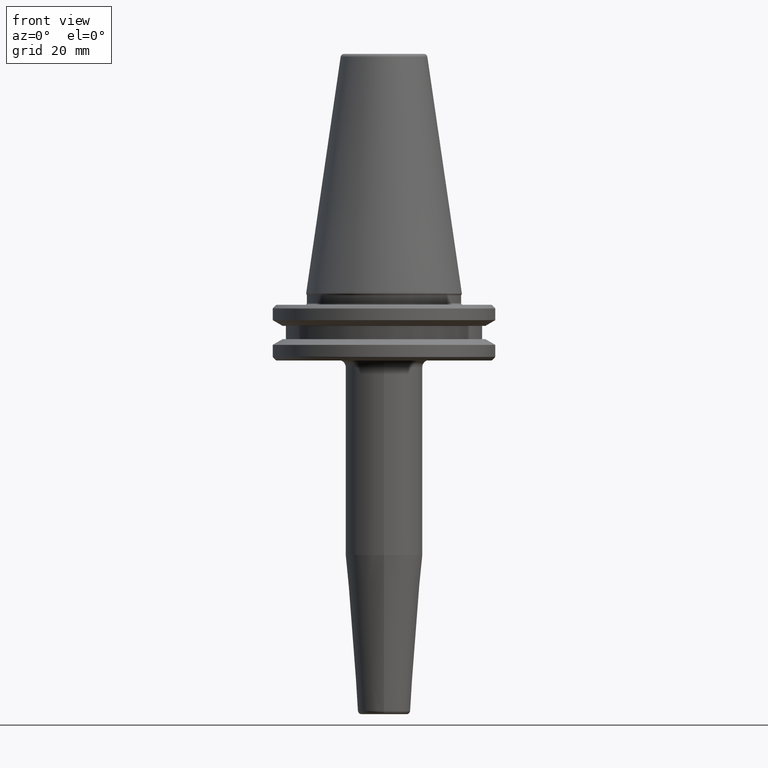
[diagram: clean part render]
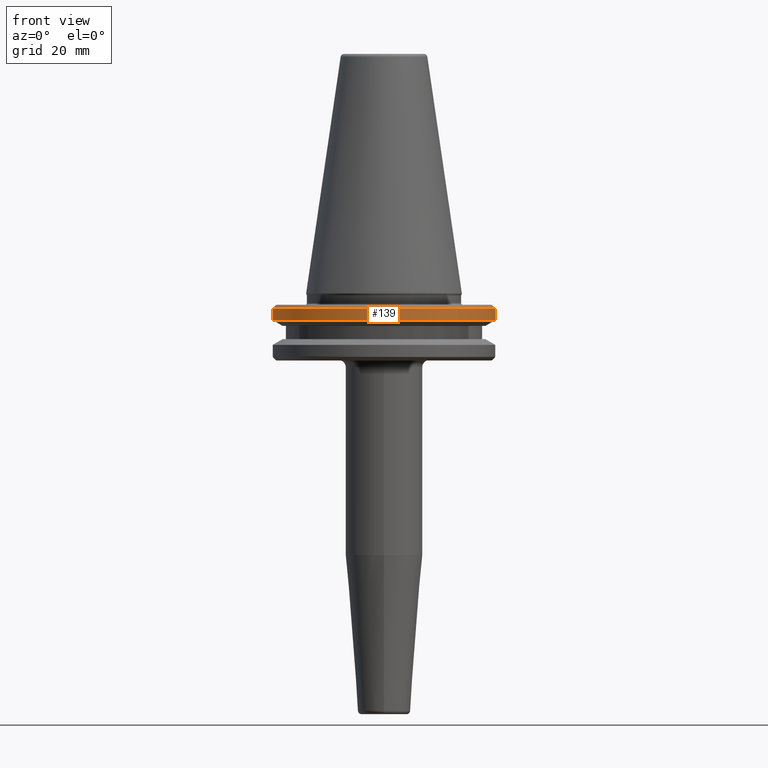
[diagram: same view with one face highlighted and labeled with its STEP entity id]
A machine part, front view. The second image highlights one B-rep face of the part: STEP entity #139.
In plain terms, the highlighted cylindrical surface (partial cylindrical patch) has radius 31.75 mm, axis along (-0, -0, 1).
Its self-contained STEP definition (entity closure, byte-faithful):
#23 = LINE ( 'NONE', #867, #253 ) ;
#44 = DIRECTION ( 'NONE',  ( -0.0000000000000000000, -0.0000000000000000000, 1.000000000000000000 ) ) ;
#139 = ADVANCED_FACE ( 'NONE', ( #725 ), #1211, .T. ) ;
#193 = CARTESIAN_POINT ( 'NONE',  ( -31.75000000000000000, 3.888253587292846500E-015, -7.578163357943284800 ) ) ;
#196 = CARTESIAN_POINT ( 'NONE',  ( -31.75000000000000000, 3.888253587292846500E-015, -4.365685424949250000 ) ) ;
#202 = CARTESIAN_POINT ( 'NONE',  ( 0.0000000000000000000, 0.0000000000000000000, 113.5216080541959500 ) ) ;
#212 = DIRECTION ( 'NONE',  ( -0.0000000000000000000, -0.0000000000000000000, 1.000000000000000000 ) ) ;
#253 = VECTOR ( 'NONE', #290, 1000.000000000000000 ) ;
#280 = AXIS2_PLACEMENT_3D ( 'NONE', #785, #723, #410 ) ;
#290 = DIRECTION ( 'NONE',  ( -0.0000000000000000000, -0.0000000000000000000, 1.000000000000000000 ) ) ;
#300 = ORIENTED_EDGE ( 'NONE', *, *, #709, .F. ) ;
#309 = DIRECTION ( 'NONE',  ( 1.000000000000000000, 0.0000000000000000000, 0.0000000000000000000 ) ) ;
#340 = CIRCLE ( 'NONE', #942, 31.75000000000000000 ) ;
#410 = DIRECTION ( 'NONE',  ( 1.000000000000000000, 0.0000000000000000000, 0.0000000000000000000 ) ) ;
#456 = EDGE_CURVE ( 'NONE', #1039, #861, #885, .T. ) ;
#482 = VERTEX_POINT ( 'NONE', #711 ) ;
#538 = DIRECTION ( 'NONE',  ( -0.0000000000000000000, -0.0000000000000000000, 1.000000000000000000 ) ) ;
#591 = VERTEX_POINT ( 'NONE', #907 ) ;
#666 = ORIENTED_EDGE ( 'NONE', *, *, #856, .T. ) ;
#670 = EDGE_LOOP ( 'NONE', ( #1146, #666, #1129, #300 ) ) ;
#709 = EDGE_CURVE ( 'NONE', #861, #482, #340, .T. ) ;
#711 = CARTESIAN_POINT ( 'NONE',  ( 31.75000000000000000, 0.0000000000000000000, -4.365685424949250000 ) ) ;
#714 = DIRECTION ( 'NONE',  ( 1.000000000000000000, 0.0000000000000000000, 0.0000000000000000000 ) ) ;
#723 = DIRECTION ( 'NONE',  ( -0.0000000000000000000, -0.0000000000000000000, 1.000000000000000000 ) ) ;
#725 = FACE_OUTER_BOUND ( 'NONE', #670, .T. ) ;
#785 = CARTESIAN_POINT ( 'NONE',  ( 0.0000000000000000000, 0.0000000000000000000, -7.578163357943284800 ) ) ;
#856 = EDGE_CURVE ( 'NONE', #1039, #591, #952, .T. ) ;
#861 = VERTEX_POINT ( 'NONE', #196 ) ;
#867 = CARTESIAN_POINT ( 'NONE',  ( 31.75000000000000000, 0.0000000000000000000, 113.5216080541959500 ) ) ;
#885 = LINE ( 'NONE', #919, #915 ) ;
#907 = CARTESIAN_POINT ( 'NONE',  ( 31.75000000000000000, 0.0000000000000000000, -7.578163357943284800 ) ) ;
#915 = VECTOR ( 'NONE', #44, 1000.000000000000000 ) ;
#919 = CARTESIAN_POINT ( 'NONE',  ( -31.75000000000000000, 3.888253587292846500E-015, 113.5216080541959500 ) ) ;
#942 = AXIS2_PLACEMENT_3D ( 'NONE', #1111, #538, #714 ) ;
#945 = AXIS2_PLACEMENT_3D ( 'NONE', #202, #212, #309 ) ;
#952 = CIRCLE ( 'NONE', #280, 31.75000000000000000 ) ;
#1032 = EDGE_CURVE ( 'NONE', #591, #482, #23, .T. ) ;
#1039 = VERTEX_POINT ( 'NONE', #193 ) ;
#1111 = CARTESIAN_POINT ( 'NONE',  ( 0.0000000000000000000, 0.0000000000000000000, -4.365685424949250000 ) ) ;
#1129 = ORIENTED_EDGE ( 'NONE', *, *, #1032, .T. ) ;
#1146 = ORIENTED_EDGE ( 'NONE', *, *, #456, .F. ) ;
#1211 = CYLINDRICAL_SURFACE ( 'NONE', #945, 31.75000000000000000 ) ;